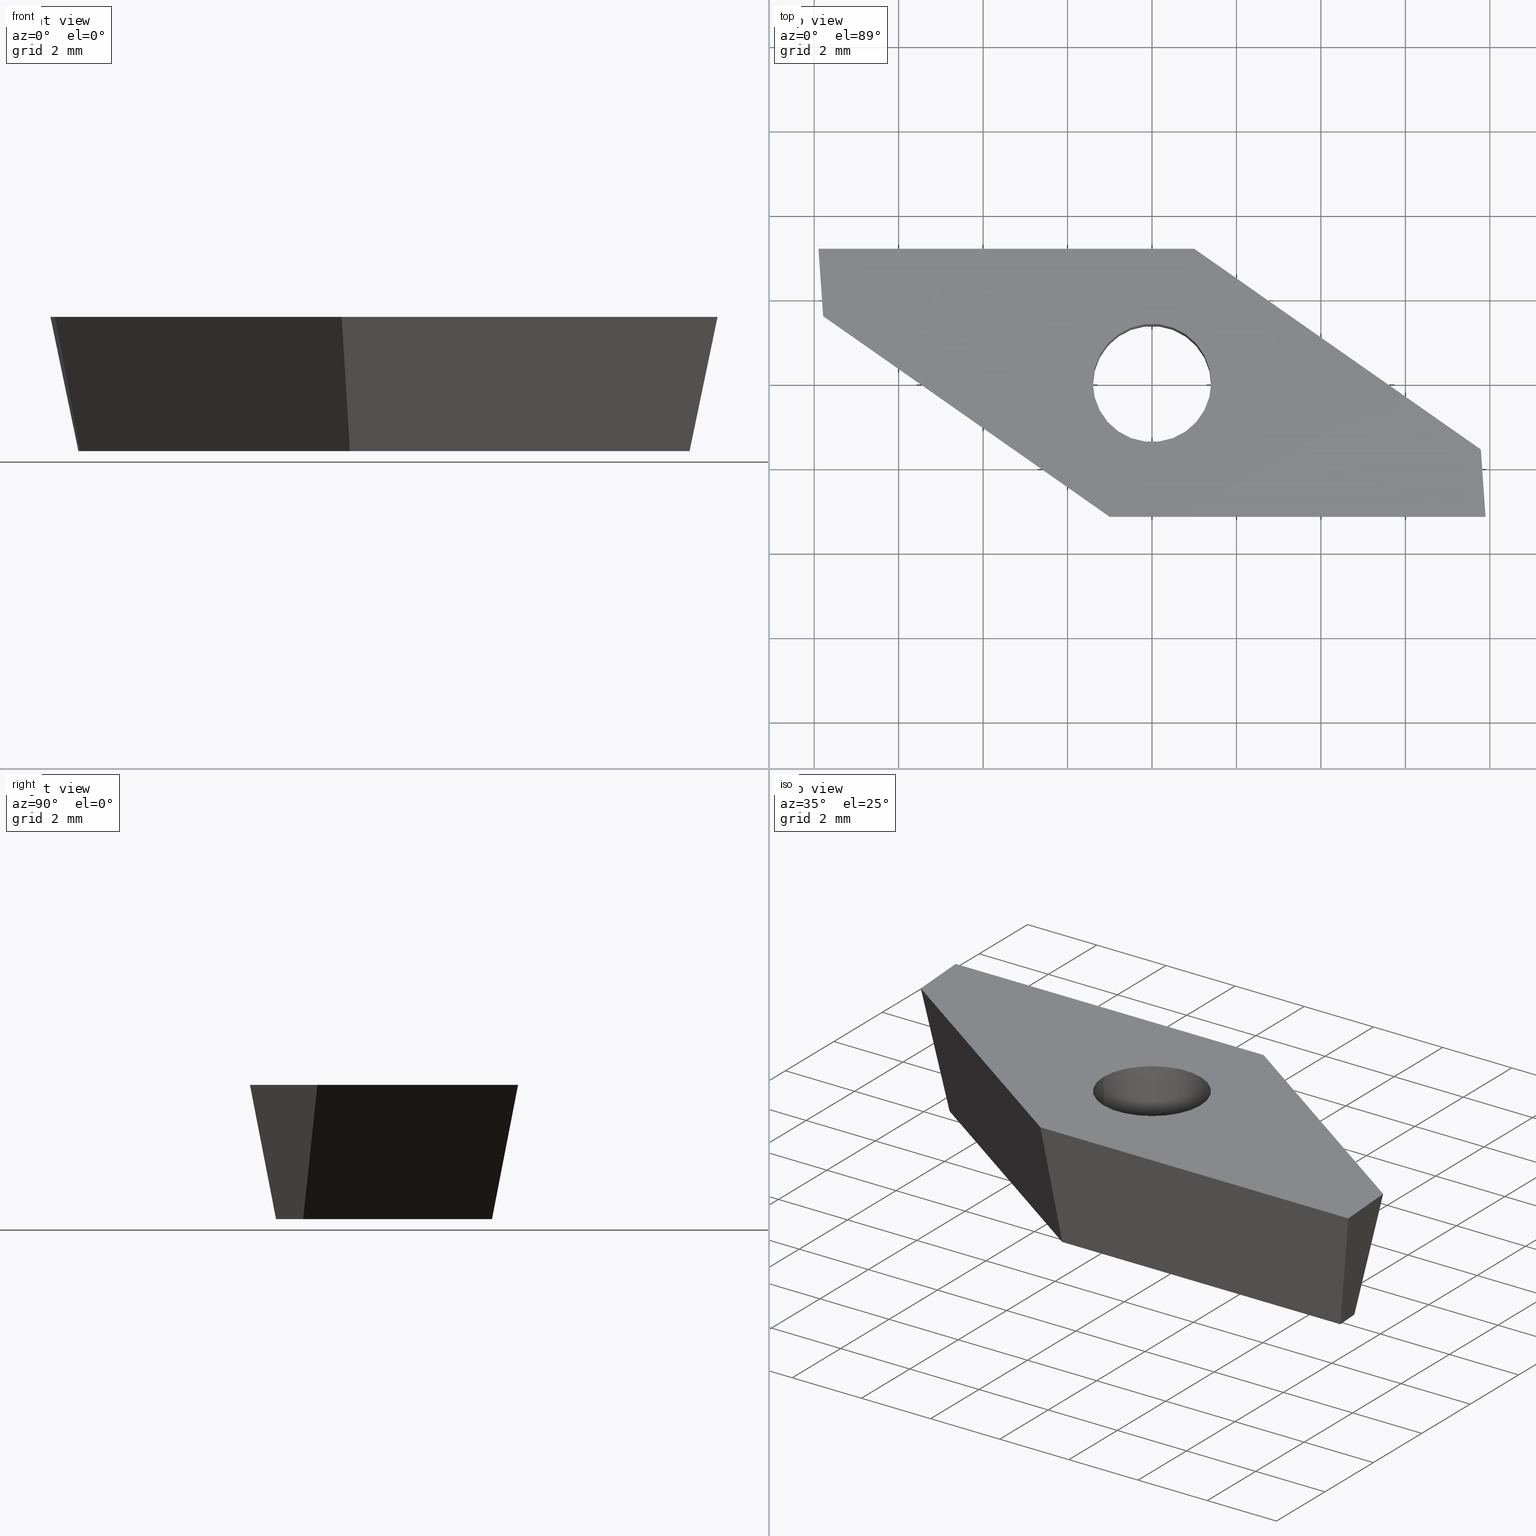
[diagram: canonical four-view strip — front | top / right | iso, engineering-drawing reading convention]
A machine part, canonical four-view strip (front | top / right | iso — engineering-drawing reading convention). The complete STEP part file that produces these views, byte-faithful:
ISO-10303-21;
HEADER;
FILE_DESCRIPTION (( 'STEP AP214' ),
    '1' );
FILE_NAME ('VP.. 1003ZZ .L.step',
    '2017-03-30T12:57:37',
    ( '' ),
    ( '' ),
    'SwSTEP 2.0',
    'SolidWorks 2016',
    '' );
FILE_SCHEMA (( 'AUTOMOTIVE_DESIGN' ));
ENDSEC;

DATA;
#1 = VECTOR ( 'NONE', #332, 1000.000000000000100 ) ;
#2 = DIRECTION ( 'NONE',  ( -1.000000000000000000, -1.581056252441636400E-016, 0.0000000000000000000 ) ) ;
#3 = COLOUR_RGB ( '',0.7960784313725489700, 0.8235294117647058400, 0.9372549019607843100 ) ;
#4 = LINE ( 'NONE', #281, #8 ) ;
#5 = VECTOR ( 'NONE', #337, 1000.000000000000000 ) ;
#6 = DIRECTION ( 'NONE',  ( 0.0000000000000000000, 0.0000000000000000000, -1.000000000000000000 ) ) ;
#7 = LINE ( 'NONE', #81, #5 ) ;
#8 = VECTOR ( 'NONE', #266, 1000.000000000000000 ) ;
#9 = DIRECTION ( 'NONE',  ( 0.0000000000000000000, 0.0000000000000000000, -1.000000000000000000 ) ) ;
#10 = AXIS2_PLACEMENT_3D ( 'NONE', #244, #178, #173 ) ;
#11 = DIRECTION ( 'NONE',  ( 0.0000000000000000000, 0.0000000000000000000, 1.000000000000000000 ) ) ;
#12 = PRODUCT ( 'VP.. 1003ZZ .L', 'VP.. 1003ZZ .L', '', ( #219 ) ) ;
#13 = CARTESIAN_POINT ( 'NONE',  ( 7.900000000000002100, -3.174999999999999400, 0.0000000000000000000 ) ) ;
#14 = DIRECTION ( 'NONE',  ( -0.06975647374412560800, 0.9975640502598243100, 0.0000000000000000000 ) ) ;
#15 = PRESENTATION_STYLE_ASSIGNMENT (( #176 ) ) ;
#16 = CARTESIAN_POINT ( 'NONE',  ( -1.399999999999999900, -2.213478753418290800E-016, -3.180000000000000200 ) ) ;
#17 = SURFACE_STYLE_FILL_AREA ( #101 ) ;
#18 = CARTESIAN_POINT ( 'NONE',  ( -1.001073654690762100, -3.174999999999999800, 0.0000000000000000000 ) ) ;
#19 = CARTESIAN_POINT ( 'NONE',  ( 7.900000000000002100, -3.174999999999999400, 0.0000000000000000000 ) ) ;
#20 = LINE ( 'NONE', #336, #1 ) ;
#21 = CARTESIAN_POINT ( 'NONE',  ( -1.001073654690762100, -2.556870616942053400, -3.180000000000000200 ) ) ;
#22 = VECTOR ( 'NONE', #346, 1000.000000000000100 ) ;
#23 = DIRECTION ( 'NONE',  ( 0.9792359889651950400, 0.06847485084868755500, -0.1908089953765452800 ) ) ;
#24 = CIRCLE ( 'NONE', #259, 1.399999999999999900 ) ;
#25 = LINE ( 'NONE', #283, #22 ) ;
#26 = CIRCLE ( 'NONE', #263, 1.399999999999999900 ) ;
#27 = EDGE_LOOP ( 'NONE', ( #237, #238, #241, #243, #246, #247 ) ) ;
#28 = VECTOR ( 'NONE', #286, 1000.000000000000000 ) ;
#29 = EDGE_LOOP ( 'NONE', ( #249, #258 ) ) ;
#30 = VECTOR ( 'NONE', #103, 1000.000000000000100 ) ;
#31 = PRODUCT_DEFINITION_FORMATION_WITH_SPECIFIED_SOURCE ( 'ANY', '', #12, .NOT_KNOWN. ) ;
#32 = LINE ( 'NONE', #78, #48 ) ;
#33 = CARTESIAN_POINT ( 'NONE',  ( 7.192231910145610900, -1.914692324122641700, -3.180000000000000200 ) ) ;
#34 = CIRCLE ( 'NONE', #276, 1.399999999999999900 ) ;
#35 = CARTESIAN_POINT ( 'NONE',  ( -1.001073654690761300, -3.174999999999999800, 4.532429341667184100E-017 ) ) ;
#36 = DIRECTION ( 'NONE',  ( -5.954649193080809200E-017, 0.9816271834476639800, -0.1908089953765452800 ) ) ;
#37 = VECTOR ( 'NONE', #79, 1000.000000000000100 ) ;
#38 = PRODUCT_DEFINITION_SHAPE ( 'NONE', 'NONE',  #282 ) ;
#39 = LINE ( 'NONE', #18, #28 ) ;
#40 = EDGE_CURVE ( 'NONE', #296, #204, #149, .T. ) ;
#41 = COLOUR_RGB ( '',0.7960784313725489700, 0.8235294117647058400, 0.9372549019607843100 ) ;
#42 = PRODUCT_RELATED_PRODUCT_CATEGORY ( 'part', '', ( #323 ) ) ;
#43 = LINE ( 'NONE', #129, #30 ) ;
#44 = CARTESIAN_POINT ( 'NONE',  ( -0.0000000000000000000, 0.0000000000000000000, -3.180000000000000200 ) ) ;
#45 = LINE ( 'NONE', #105, #37 ) ;
#46 = SURFACE_SIDE_STYLE ('',( #17 ) ) ;
#47 = VECTOR ( 'NONE', #309, 1000.000000000000000 ) ;
#48 = VECTOR ( 'NONE', #104, 1000.000000000000000 ) ;
#49 = LINE ( 'NONE', #331, #62 ) ;
#50 = SURFACE_STYLE_USAGE ( .BOTH. , #161 ) ;
#51 = DIRECTION ( 'NONE',  ( -1.000000000000000000, -1.581056252441636400E-016, 0.0000000000000000000 ) ) ;
#52 = VECTOR ( 'NONE', #325, 1000.000000000000100 ) ;
#53 = LINE ( 'NONE', #316, #52 ) ;
#54 = AXIS2_PLACEMENT_3D ( 'NONE', #261, #146, #144 ) ;
#55 = LINE ( 'NONE', #87, #47 ) ;
#56 = DIRECTION ( 'NONE',  ( 0.0000000000000000000, 0.0000000000000000000, 1.000000000000000000 ) ) ;
#57 = CARTESIAN_POINT ( 'NONE',  ( 0.0000000000000000000, 0.0000000000000000000, 0.0000000000000000000 ) ) ;
#58 = EDGE_CURVE ( 'NONE', #295, #284, #308, .T. ) ;
#59 = VECTOR ( 'NONE', #278, 1000.000000000000100 ) ;
#60 = CIRCLE ( 'NONE', #216, 1.399999999999999900 ) ;
#61 = DIRECTION ( 'NONE',  ( -3.016797551621942100E-017, 0.1908089953765452800, 0.9816271834476639800 ) ) ;
#62 = VECTOR ( 'NONE', #124, 1000.000000000000200 ) ;
#63 = DIRECTION ( 'NONE',  ( 0.1912579077465619300, 3.023895108716074100E-017, 0.9815398171874677400 ) ) ;
#64 = DIRECTION ( 'NONE',  ( -1.000000000000000000, -6.066100545593014700E-017, 0.0000000000000000000 ) ) ;
#65 = EDGE_CURVE ( 'NONE', #293, #180, #152, .T. ) ;
#66 = FACE_OUTER_BOUND ( 'NONE', #212, .T. ) ;
#67 = CYLINDRICAL_SURFACE ( 'NONE', #357, 1.399999999999999900 ) ;
#68 = DIRECTION ( 'NONE',  ( -0.0000000000000000000, -0.0000000000000000000, -1.000000000000000000 ) ) ;
#69 = FACE_OUTER_BOUND ( 'NONE', #291, .T. ) ;
#70 = ORIENTED_EDGE ( 'NONE', *, *, #317, .T. ) ;
#71 = CARTESIAN_POINT ( 'NONE',  ( -7.192231910145610000, 1.914692324122639500, -3.180000000000000200 ) ) ;
#72 = EDGE_CURVE ( 'NONE', #284, #250, #142, .T. ) ;
#73 = ORIENTED_EDGE ( 'NONE', *, *, #72, .F. ) ;
#74 = ORIENTED_EDGE ( 'NONE', *, *, #338, .T. ) ;
#75 = ORIENTED_EDGE ( 'NONE', *, *, #285, .F. ) ;
#76 = VERTEX_POINT ( 'NONE', #33 ) ;
#77 = CARTESIAN_POINT ( 'NONE',  ( -1.399999999999999900, -2.213478753418290800E-016, -3.180000000000000200 ) ) ;
#78 = CARTESIAN_POINT ( 'NONE',  ( 1.001073654690764100, 3.174999999999999800, 0.0000000000000000000 ) ) ;
#79 = DIRECTION ( 'NONE',  ( -0.2004640746510998100, 0.1869357738407769200, 0.9617011860410842300 ) ) ;
#80 = PLANE ( 'NONE',  #314 ) ;
#81 = CARTESIAN_POINT ( 'NONE',  ( -7.433744630409206500, 2.083801351424740200, -3.180000000000000200 ) ) ;
#82 = PRODUCT_DEFINITION_CONTEXT ( 'detailed design', #208, 'design' ) ;
#83 = UNCERTAINTY_MEASURE_WITH_UNIT (LENGTH_MEASURE( 1.000000000000000100E-005 ), #158, 'distance_accuracy_value', 'NONE');
#84 = EDGE_CURVE ( 'NONE', #225, #260, #131, .T. ) ;
#85 =( GEOMETRIC_REPRESENTATION_CONTEXT ( 3 ) GLOBAL_UNCERTAINTY_ASSIGNED_CONTEXT ( ( #114 ) ) GLOBAL_UNIT_ASSIGNED_CONTEXT ( ( #256, #254, #252 ) ) REPRESENTATION_CONTEXT ( 'NONE', 'WORKASPACE' ) );
#86 = CARTESIAN_POINT ( 'NONE',  ( 1.001073654690764100, 2.556870616942053400, -3.180000000000000200 ) ) ;
#87 = CARTESIAN_POINT ( 'NONE',  ( 1.399999999999999900, 4.989732346119967600E-017, -3.180000000000000200 ) ) ;
#88 = PLANE ( 'NONE',  #303 ) ;
#89 = FILL_AREA_STYLE_COLOUR ( '', #41 ) ;
#90 = FACE_OUTER_BOUND ( 'NONE', #307, .T. ) ;
#91 = CYLINDRICAL_SURFACE ( 'NONE', #347, 1.399999999999999900 ) ;
#92 = CARTESIAN_POINT ( 'NONE',  ( 0.0000000000000000000, 0.0000000000000000000, -3.180000000000000200 ) ) ;
#93 = FACE_OUTER_BOUND ( 'NONE', #318, .T. ) ;
#94 = CARTESIAN_POINT ( 'NONE',  ( 7.788289079147451900, -1.577459403657730300, 0.0000000000000000000 ) ) ;
#95 = PLANE ( 'NONE',  #320 ) ;
#96 = LINE ( 'NONE', #110, #59 ) ;
#97 = MECHANICAL_DESIGN_GEOMETRIC_PRESENTATION_REPRESENTATION (  '', ( #183 ), #344 ) ;
#98 = FACE_OUTER_BOUND ( 'NONE', #294, .T. ) ;
#99 = FACE_OUTER_BOUND ( 'NONE', #322, .T. ) ;
#100 = DIRECTION ( 'NONE',  ( 0.1912579077465619300, 3.023895108716074100E-017, -0.9815398171874677400 ) ) ;
#101 = FILL_AREA_STYLE ('',( #89 ) ) ;
#102 = DIRECTION ( 'NONE',  ( -1.000000000000000000, -1.581056252441636400E-016, 0.0000000000000000000 ) ) ;
#103 = DIRECTION ( 'NONE',  ( 0.2004640746510999200, -0.1869357738407769200, 0.9617011860410842300 ) ) ;
#104 = DIRECTION ( 'NONE',  ( 1.000000000000000000, 6.066100545593014700E-017, -0.0000000000000000000 ) ) ;
#105 = CARTESIAN_POINT ( 'NONE',  ( -7.900000000000000400, 3.174999999999999400, 0.0000000000000000000 ) ) ;
#106 = PRODUCT_DEFINITION_SHAPE ( 'NONE', 'NONE',  #353 ) ;
#107 = DIRECTION ( 'NONE',  ( -0.5630382217072208400, -0.8041019140508024500, -0.1908089953765452500 ) ) ;
#108 = CARTESIAN_POINT ( 'NONE',  ( -0.8061782088420796900, -2.556870616942053400, -3.180000000000000200 ) ) ;
#109 = EDGE_CURVE ( 'NONE', #255, #315, #138, .T. ) ;
#110 = CARTESIAN_POINT ( 'NONE',  ( 7.283376349052112200, -3.218118526079754000, -3.180000000000000200 ) ) ;
#111 = CARTESIAN_POINT ( 'NONE',  ( 0.8061782088420823600, 2.556870616942053400, -3.180000000000000200 ) ) ;
#112 = FACE_OUTER_BOUND ( 'NONE', #324, .T. ) ;
#113 = CARTESIAN_POINT ( 'NONE',  ( 0.0000000000000000000, 0.0000000000000000000, 0.0000000000000000000 ) ) ;
#114 = UNCERTAINTY_MEASURE_WITH_UNIT (LENGTH_MEASURE( 1.000000000000000100E-005 ), #256, 'distance_accuracy_value', 'NONE');
#115 = DIRECTION ( 'NONE',  ( 0.0000000000000000000, 0.0000000000000000000, 1.000000000000000000 ) ) ;
#116 = FACE_BOUND ( 'NONE', #311, .T. ) ;
#117 = FACE_OUTER_BOUND ( 'NONE', #27, .T. ) ;
#118 = FACE_BOUND ( 'NONE', #29, .T. ) ;
#119 = VECTOR ( 'NONE', #196, 1000.000000000000200 ) ;
#120 = DIRECTION ( 'NONE',  ( -0.0000000000000000000, -0.0000000000000000000, -1.000000000000000000 ) ) ;
#121 = FACE_OUTER_BOUND ( 'NONE', #235, .T. ) ;
#122 = EDGE_CURVE ( 'NONE', #299, #225, #128, .T. ) ;
#123 = CARTESIAN_POINT ( 'NONE',  ( -7.788289079147451100, 1.577459403657728100, 0.0000000000000000000 ) ) ;
#124 = DIRECTION ( 'NONE',  ( -0.8191520442889952400, 0.5735764363510411600, 0.0000000000000000000 ) ) ;
#125 = PRESENTATION_LAYER_ASSIGNMENT (  '', '', ( #183 ) ) ;
#126 = VECTOR ( 'NONE', #139, 1000.000000000000000 ) ;
#127 = LINE ( 'NONE', #134, #119 ) ;
#128 = LINE ( 'NONE', #163, #126 ) ;
#129 = CARTESIAN_POINT ( 'NONE',  ( 7.900000000000002100, -3.174999999999999400, 0.0000000000000000000 ) ) ;
#130 = VECTOR ( 'NONE', #14, 999.9999999999998900 ) ;
#131 = LINE ( 'NONE', #348, #130 ) ;
#132 = PLANE ( 'NONE',  #245 ) ;
#133 = VECTOR ( 'NONE', #356, 1000.000000000000000 ) ;
#134 = CARTESIAN_POINT ( 'NONE',  ( 7.788289079147451900, -1.577459403657730300, 0.0000000000000000000 ) ) ;
#135 = VECTOR ( 'NONE', #257, 1000.000000000000100 ) ;
#136 = FACE_OUTER_BOUND ( 'NONE', #228, .T. ) ;
#137 = VECTOR ( 'NONE', #242, 1000.000000000000000 ) ;
#138 = LINE ( 'NONE', #86, #133 ) ;
#139 = DIRECTION ( 'NONE',  ( -0.1832382521941806300, -0.1036712150141736200, 0.9775868360970839700 ) ) ;
#140 = EDGE_CURVE ( 'NONE', #290, #293, #127, .T. ) ;
#141 = VECTOR ( 'NONE', #64, 1000.000000000000000 ) ;
#142 = LINE ( 'NONE', #35, #135 ) ;
#143 = APPLICATION_PROTOCOL_DEFINITION ( 'draft international standard', 'automotive_design', 1998, #217 ) ;
#144 = DIRECTION ( 'NONE',  ( 1.000000000000000000, 0.0000000000000000000, 0.0000000000000000000 ) ) ;
#145 = VECTOR ( 'NONE', #56, 1000.000000000000000 ) ;
#146 = DIRECTION ( 'NONE',  ( 0.0000000000000000000, 0.0000000000000000000, 1.000000000000000000 ) ) ;
#147 =( GEOMETRIC_REPRESENTATION_CONTEXT ( 3 ) GLOBAL_UNCERTAINTY_ASSIGNED_CONTEXT ( ( #83 ) ) GLOBAL_UNIT_ASSIGNED_CONTEXT ( ( #158, #157, #151 ) ) REPRESENTATION_CONTEXT ( 'NONE', 'WORKASPACE' ) );
#148 = CARTESIAN_POINT ( 'NONE',  ( 1.399999999999999900, 4.989732346119967600E-017, 0.0000000000000000000 ) ) ;
#149 = LINE ( 'NONE', #16, #145 ) ;
#150 = CARTESIAN_POINT ( 'NONE',  ( -1.001073654690762100, -3.174999999999999800, 0.0000000000000000000 ) ) ;
#151 =( NAMED_UNIT ( * ) SI_UNIT ( $, .STERADIAN. ) SOLID_ANGLE_UNIT ( ) );
#152 = LINE ( 'NONE', #13, #137 ) ;
#153 = CARTESIAN_POINT ( 'NONE',  ( 1.399999999999999900, 4.989732346119967600E-017, -3.180000000000000200 ) ) ;
#154 = CARTESIAN_POINT ( 'NONE',  ( 1.001073654690764100, 3.174999999999999800, 0.0000000000000000000 ) ) ;
#155 = PLANE ( 'NONE',  #185 ) ;
#156 = ORIENTED_EDGE ( 'NONE', *, *, #285, .T. ) ;
#157 =( NAMED_UNIT ( * ) PLANE_ANGLE_UNIT ( ) SI_UNIT ( $, .RADIAN. ) );
#158 =( LENGTH_UNIT ( ) NAMED_UNIT ( * ) SI_UNIT ( .MILLI., .METRE. ) );
#159 = ADVANCED_FACE ( 'NONE', ( #121 ), #155, .T. ) ;
#160 = ADVANCED_FACE ( 'NONE', ( #118, #112 ), #80, .F. ) ;
#161 = SURFACE_SIDE_STYLE ('',( #335 ) ) ;
#162 = ORIENTED_EDGE ( 'NONE', *, *, #327, .T. ) ;
#163 = CARTESIAN_POINT ( 'NONE',  ( -7.788289079147451100, 1.577459403657728100, 3.148184459698170000E-018 ) ) ;
#164 = ADVANCED_FACE ( 'NONE', ( #116, #117 ), #88, .T. ) ;
#165 = ORIENTED_EDGE ( 'NONE', *, *, #304, .F. ) ;
#166 = ADVANCED_FACE ( 'NONE', ( #99 ), #91, .F. ) ;
#167 = ADVANCED_FACE ( 'NONE', ( #98 ), #95, .T. ) ;
#168 = FILL_AREA_STYLE ('',( #223 ) ) ;
#169 = ORIENTED_EDGE ( 'NONE', *, *, #40, .F. ) ;
#170 = ORIENTED_EDGE ( 'NONE', *, *, #65, .T. ) ;
#171 = APPLICATION_CONTEXT ( 'automotive_design' ) ;
#172 = ORIENTED_EDGE ( 'NONE', *, *, #321, .F. ) ;
#173 = DIRECTION ( 'NONE',  ( 1.000000000000000000, 0.0000000000000000000, 0.0000000000000000000 ) ) ;
#174 = ADVANCED_FACE ( 'NONE', ( #90 ), #67, .F. ) ;
#175 = ADVANCED_FACE ( 'NONE', ( #93 ), #273, .T. ) ;
#176 = SURFACE_STYLE_USAGE ( .BOTH. , #46 ) ;
#177 = ADVANCED_FACE ( 'NONE', ( #136 ), #189, .T. ) ;
#178 = DIRECTION ( 'NONE',  ( 0.0000000000000000000, 0.0000000000000000000, 1.000000000000000000 ) ) ;
#179 = ADVANCED_FACE ( 'NONE', ( #66 ), #132, .T. ) ;
#180 = VERTEX_POINT ( 'NONE', #330 ) ;
#181 = EDGE_CURVE ( 'NONE', #76, #295, #96, .T. ) ;
#182 = ORIENTED_EDGE ( 'NONE', *, *, #181, .F. ) ;
#183 = STYLED_ITEM ( 'NONE', ( #15 ), #342 ) ;
#184 = ADVANCED_FACE ( 'NONE', ( #69 ), #287, .T. ) ;
#185 = AXIS2_PLACEMENT_3D ( 'NONE', #19, #23, #63 ) ;
#186 = CARTESIAN_POINT ( 'NONE',  ( 7.237137390861799500, -2.556870616942053000, -3.180000000000000200 ) ) ;
#187 = ORIENTED_EDGE ( 'NONE', *, *, #334, .T. ) ;
#188 = ORIENTED_EDGE ( 'NONE', *, *, #140, .T. ) ;
#189 = PLANE ( 'NONE',  #339 ) ;
#190 = ORIENTED_EDGE ( 'NONE', *, *, #334, .F. ) ;
#191 = ORIENTED_EDGE ( 'NONE', *, *, #351, .F. ) ;
#192 = APPLICATION_PROTOCOL_DEFINITION ( 'draft international standard', 'automotive_design', 1998, #200 ) ;
#193 = ORIENTED_EDGE ( 'NONE', *, *, #203, .T. ) ;
#194 = DIRECTION ( 'NONE',  ( -0.8191520442889952400, 0.5735764363510411600, 0.0000000000000000000 ) ) ;
#195 = SHAPE_DEFINITION_REPRESENTATION ( #38, #326 ) ;
#196 = DIRECTION ( 'NONE',  ( 0.8191520442889951300, -0.5735764363510413900, -0.0000000000000000000 ) ) ;
#197 = EDGE_CURVE ( 'NONE', #289, #204, #60, .T. ) ;
#198 = ORIENTED_EDGE ( 'NONE', *, *, #312, .T. ) ;
#199 = PRODUCT_RELATED_PRODUCT_CATEGORY ( 'part', '', ( #12 ) ) ;
#200 = APPLICATION_CONTEXT ( 'automotive_design' ) ;
#201 = APPLICATION_PROTOCOL_DEFINITION ( 'draft international standard', 'automotive_design', 1998, #208 ) ;
#202 = PRODUCT_DEFINITION_CONTEXT ( 'detailed design', #217, 'design' ) ;
#203 = EDGE_CURVE ( 'NONE', #315, #290, #53, .T. ) ;
#204 = VERTEX_POINT ( 'NONE', #274 ) ;
#205 = DIRECTION ( 'NONE',  ( -0.9792359889651950400, -0.06847485084868693000, -0.1908089953765452800 ) ) ;
#206 = ORIENTED_EDGE ( 'NONE', *, *, #203, .F. ) ;
#207 = ORIENTED_EDGE ( 'NONE', *, *, #109, .F. ) ;
#208 = APPLICATION_CONTEXT ( 'automotive_design' ) ;
#209 = ORIENTED_EDGE ( 'NONE', *, *, #305, .T. ) ;
#210 = ORIENTED_EDGE ( 'NONE', *, *, #84, .T. ) ;
#211 = STYLED_ITEM ( 'NONE', ( #275 ), #326 ) ;
#212 = EDGE_LOOP ( 'NONE', ( #198, #206, #207, #209 ) ) ;
#213 = PRODUCT_CONTEXT ( 'NONE', #200, 'mechanical' ) ;
#214 = ORIENTED_EDGE ( 'NONE', *, *, #305, .F. ) ;
#215 = ORIENTED_EDGE ( 'NONE', *, *, #350, .F. ) ;
#216 = AXIS2_PLACEMENT_3D ( 'NONE', #232, #251, #341 ) ;
#217 = APPLICATION_CONTEXT ( 'automotive_design' ) ;
#218 = ORIENTED_EDGE ( 'NONE', *, *, #122, .T. ) ;
#219 = PRODUCT_CONTEXT ( 'NONE', #171, 'mechanical' ) ;
#220 = APPLICATION_PROTOCOL_DEFINITION ( 'draft international standard', 'automotive_design', 1998, #171 ) ;
#221 = ORIENTED_EDGE ( 'NONE', *, *, #288, .T. ) ;
#222 = ORIENTED_EDGE ( 'NONE', *, *, #122, .F. ) ;
#223 = FILL_AREA_STYLE_COLOUR ( '', #3 ) ;
#224 = ORIENTED_EDGE ( 'NONE', *, *, #345, .F. ) ;
#225 = VERTEX_POINT ( 'NONE', #302 ) ;
#226 = ORIENTED_EDGE ( 'NONE', *, *, #72, .T. ) ;
#227 = CARTESIAN_POINT ( 'NONE',  ( -7.900000000000000400, 3.174999999999999400, 0.0000000000000000000 ) ) ;
#228 = EDGE_LOOP ( 'NONE', ( #188, #190, #191, #193 ) ) ;
#229 = CARTESIAN_POINT ( 'NONE',  ( -0.0000000000000000000, 0.0000000000000000000, -3.180000000000000200 ) ) ;
#230 = ORIENTED_EDGE ( 'NONE', *, *, #58, .F. ) ;
#231 = ORIENTED_EDGE ( 'NONE', *, *, #321, .T. ) ;
#232 = CARTESIAN_POINT ( 'NONE',  ( 0.0000000000000000000, 0.0000000000000000000, 0.0000000000000000000 ) ) ;
#233 = ORIENTED_EDGE ( 'NONE', *, *, #327, .F. ) ;
#234 = DIRECTION ( 'NONE',  ( -1.000000000000000000, -1.581056252441636400E-016, 0.0000000000000000000 ) ) ;
#235 = EDGE_LOOP ( 'NONE', ( #170, #172, #182, #187 ) ) ;
#236 = ORIENTED_EDGE ( 'NONE', *, *, #338, .F. ) ;
#237 = ORIENTED_EDGE ( 'NONE', *, *, #181, .T. ) ;
#238 = ORIENTED_EDGE ( 'NONE', *, *, #58, .T. ) ;
#239 = PRESENTATION_LAYER_ASSIGNMENT (  '', '', ( #211 ) ) ;
#240 = DIRECTION ( 'NONE',  ( 1.000000000000000000, 1.581056252441636400E-016, 0.0000000000000000000 ) ) ;
#241 = ORIENTED_EDGE ( 'NONE', *, *, #345, .T. ) ;
#242 = DIRECTION ( 'NONE',  ( 0.06975647374412621800, -0.9975640502598242000, -0.0000000000000000000 ) ) ;
#243 = ORIENTED_EDGE ( 'NONE', *, *, #350, .T. ) ;
#244 = CARTESIAN_POINT ( 'NONE',  ( 0.0000000000000000000, 0.0000000000000000000, 0.0000000000000000000 ) ) ;
#245 = AXIS2_PLACEMENT_3D ( 'NONE', #270, #36, #61 ) ;
#246 = ORIENTED_EDGE ( 'NONE', *, *, #109, .T. ) ;
#247 = ORIENTED_EDGE ( 'NONE', *, *, #351, .T. ) ;
#248 = MECHANICAL_DESIGN_GEOMETRIC_PRESENTATION_REPRESENTATION (  '', ( #211 ), #147 ) ;
#249 = ORIENTED_EDGE ( 'NONE', *, *, #304, .T. ) ;
#250 = VERTEX_POINT ( 'NONE', #150 ) ;
#251 = DIRECTION ( 'NONE',  ( -0.0000000000000000000, -0.0000000000000000000, -1.000000000000000000 ) ) ;
#252 =( NAMED_UNIT ( * ) SI_UNIT ( $, .STERADIAN. ) SOLID_ANGLE_UNIT ( ) );
#253 = AXIS2_PLACEMENT_3D ( 'NONE', #277, #313, #268 ) ;
#254 =( NAMED_UNIT ( * ) PLANE_ANGLE_UNIT ( ) SI_UNIT ( $, .RADIAN. ) );
#255 = VERTEX_POINT ( 'NONE', #329 ) ;
#256 =( LENGTH_UNIT ( ) NAMED_UNIT ( * ) SI_UNIT ( .MILLI., .METRE. ) );
#257 = DIRECTION ( 'NONE',  ( -0.06005326349153966600, -0.1904646183547176200, 0.9798555172570124800 ) ) ;
#258 = ORIENTED_EDGE ( 'NONE', *, *, #197, .T. ) ;
#259 = AXIS2_PLACEMENT_3D ( 'NONE', #44, #68, #51 ) ;
#260 = VERTEX_POINT ( 'NONE', #319 ) ;
#261 = CARTESIAN_POINT ( 'NONE',  ( 0.0000000000000000000, 0.0000000000000000000, 0.0000000000000000000 ) ) ;
#262 = UNCERTAINTY_MEASURE_WITH_UNIT (LENGTH_MEASURE( 1.000000000000000100E-005 ), #355, 'distance_accuracy_value', 'NONE');
#263 = AXIS2_PLACEMENT_3D ( 'NONE', #292, #298, #301 ) ;
#264 = ORIENTED_EDGE ( 'NONE', *, *, #65, .F. ) ;
#265 = ORIENTED_EDGE ( 'NONE', *, *, #140, .F. ) ;
#266 = DIRECTION ( 'NONE',  ( 0.8191520442889951300, -0.5735764363510413900, 0.0000000000000000000 ) ) ;
#267 = ORIENTED_EDGE ( 'NONE', *, *, #312, .F. ) ;
#268 = DIRECTION ( 'NONE',  ( -3.016797551621942100E-017, 0.1908089953765452800, -0.9816271834476639800 ) ) ;
#269 = ORIENTED_EDGE ( 'NONE', *, *, #84, .F. ) ;
#270 = CARTESIAN_POINT ( 'NONE',  ( 1.001073654690764100, 3.174999999999999800, 0.0000000000000000000 ) ) ;
#271 = ORIENTED_EDGE ( 'NONE', *, *, #288, .F. ) ;
#272 = ORIENTED_EDGE ( 'NONE', *, *, #317, .F. ) ;
#273 = PLANE ( 'NONE',  #354 ) ;
#274 = CARTESIAN_POINT ( 'NONE',  ( -1.399999999999999900, -2.213478753418290800E-016, 0.0000000000000000000 ) ) ;
#275 = PRESENTATION_STYLE_ASSIGNMENT (( #50 ) ) ;
#276 = AXIS2_PLACEMENT_3D ( 'NONE', #113, #120, #102 ) ;
#277 = CARTESIAN_POINT ( 'NONE',  ( -1.001073654690762100, -3.174999999999999800, 0.0000000000000000000 ) ) ;
#278 = DIRECTION ( 'NONE',  ( 0.06975647374412621800, -0.9975640502598242000, 0.0000000000000000000 ) ) ;
#279 = ORIENTED_EDGE ( 'NONE', *, *, #40, .T. ) ;
#280 = ORIENTED_EDGE ( 'NONE', *, *, #197, .F. ) ;
#281 = CARTESIAN_POINT ( 'NONE',  ( 7.433744630409207400, -2.083801351424742400, -3.180000000000000200 ) ) ;
#282 = PRODUCT_DEFINITION ( 'UNKNOWN', '', #31, #202 ) ;
#283 = CARTESIAN_POINT ( 'NONE',  ( 7.788289079147451900, -1.577459403657730300, 0.0000000000000000000 ) ) ;
#284 = VERTEX_POINT ( 'NONE', #108 ) ;
#285 = EDGE_CURVE ( 'NONE', #297, #289, #55, .T. ) ;
#286 = DIRECTION ( 'NONE',  ( -1.000000000000000000, -6.066100545593014700E-017, 0.0000000000000000000 ) ) ;
#287 = PLANE ( 'NONE',  #253 ) ;
#288 = EDGE_CURVE ( 'NONE', #250, #225, #49, .T. ) ;
#289 = VERTEX_POINT ( 'NONE', #148 ) ;
#290 = VERTEX_POINT ( 'NONE', #154 ) ;
#291 = EDGE_LOOP ( 'NONE', ( #70, #73, #230, #231 ) ) ;
#292 = CARTESIAN_POINT ( 'NONE',  ( -0.0000000000000000000, 0.0000000000000000000, -3.180000000000000200 ) ) ;
#293 = VERTEX_POINT ( 'NONE', #328 ) ;
#294 = EDGE_LOOP ( 'NONE', ( #210, #214, #215, #218 ) ) ;
#295 = VERTEX_POINT ( 'NONE', #186 ) ;
#296 = VERTEX_POINT ( 'NONE', #77 ) ;
#297 = VERTEX_POINT ( 'NONE', #153 ) ;
#298 = DIRECTION ( 'NONE',  ( -0.0000000000000000000, -0.0000000000000000000, -1.000000000000000000 ) ) ;
#299 = VERTEX_POINT ( 'NONE', #71 ) ;
#300 = CARTESIAN_POINT ( 'NONE',  ( -0.0000000000000000000, 0.0000000000000000000, -3.180000000000000200 ) ) ;
#301 = DIRECTION ( 'NONE',  ( -1.000000000000000000, -1.581056252441636400E-016, 0.0000000000000000000 ) ) ;
#302 = CARTESIAN_POINT ( 'NONE',  ( -7.788289079147451100, 1.577459403657728100, 0.0000000000000000000 ) ) ;
#303 = AXIS2_PLACEMENT_3D ( 'NONE', #92, #6, #240 ) ;
#304 = EDGE_CURVE ( 'NONE', #204, #289, #34, .T. ) ;
#305 = EDGE_CURVE ( 'NONE', #255, #260, #45, .T. ) ;
#306 = CLOSED_SHELL ( 'NONE', ( #166, #159, #177, #179, #167, #175, #184, #164, #160, #174 ) ) ;
#307 = EDGE_LOOP ( 'NONE', ( #75, #74, #279, #280 ) ) ;
#308 = LINE ( 'NONE', #21, #141 ) ;
#309 = DIRECTION ( 'NONE',  ( 0.0000000000000000000, 0.0000000000000000000, 1.000000000000000000 ) ) ;
#310 = DIRECTION ( 'NONE',  ( 1.000000000000000000, 1.581056252441636400E-016, 0.0000000000000000000 ) ) ;
#311 = EDGE_LOOP ( 'NONE', ( #233, #236 ) ) ;
#312 = EDGE_CURVE ( 'NONE', #260, #290, #32, .T. ) ;
#313 = DIRECTION ( 'NONE',  ( 5.954649193080809200E-017, -0.9816271834476639800, -0.1908089953765452800 ) ) ;
#314 = AXIS2_PLACEMENT_3D ( 'NONE', #57, #9, #310 ) ;
#315 = VERTEX_POINT ( 'NONE', #111 ) ;
#316 = CARTESIAN_POINT ( 'NONE',  ( 1.001073654690764100, 3.174999999999999800, 0.0000000000000000000 ) ) ;
#317 = EDGE_CURVE ( 'NONE', #180, #250, #39, .T. ) ;
#318 = EDGE_LOOP ( 'NONE', ( #221, #222, #224, #226 ) ) ;
#319 = CARTESIAN_POINT ( 'NONE',  ( -7.900000000000000400, 3.174999999999999400, 0.0000000000000000000 ) ) ;
#320 = AXIS2_PLACEMENT_3D ( 'NONE', #227, #205, #100 ) ;
#321 = EDGE_CURVE ( 'NONE', #295, #180, #43, .T. ) ;
#322 = EDGE_LOOP ( 'NONE', ( #162, #156, #165, #169 ) ) ;
#323 = PRODUCT ( 'VP.. 1003ZZ .L', 'VP.. 1003ZZ .L', '', ( #213 ) ) ;
#324 = EDGE_LOOP ( 'NONE', ( #264, #265, #267, #269, #271, #272 ) ) ;
#325 = DIRECTION ( 'NONE',  ( 0.06005326349153968000, 0.1904646183547176200, 0.9798555172570124800 ) ) ;
#326 = ADVANCED_BREP_SHAPE_REPRESENTATION ( 'VP.. 1003ZZ .L', ( #342, #54 ), #85 ) ;
#327 = EDGE_CURVE ( 'NONE', #296, #297, #26, .T. ) ;
#328 = CARTESIAN_POINT ( 'NONE',  ( 7.788289079147451900, -1.577459403657730300, 0.0000000000000000000 ) ) ;
#329 = CARTESIAN_POINT ( 'NONE',  ( -7.237137390861797700, 2.556870616942053000, -3.180000000000000200 ) ) ;
#330 = CARTESIAN_POINT ( 'NONE',  ( 7.900000000000002100, -3.174999999999999400, 0.0000000000000000000 ) ) ;
#331 = CARTESIAN_POINT ( 'NONE',  ( -7.788289079147451100, 1.577459403657728100, 0.0000000000000000000 ) ) ;
#332 = DIRECTION ( 'NONE',  ( -0.06975647374412560800, 0.9975640502598242000, 0.0000000000000000000 ) ) ;
#333 = PRODUCT_DEFINITION_FORMATION_WITH_SPECIFIED_SOURCE ( 'ANY', '', #323, .NOT_KNOWN. ) ;
#334 = EDGE_CURVE ( 'NONE', #76, #293, #25, .T. ) ;
#335 = SURFACE_STYLE_FILL_AREA ( #168 ) ;
#336 = CARTESIAN_POINT ( 'NONE',  ( -7.283376349052110400, 3.218118526079753600, -3.180000000000000200 ) ) ;
#337 = DIRECTION ( 'NONE',  ( -0.8191520442889952400, 0.5735764363510411600, 0.0000000000000000000 ) ) ;
#338 = EDGE_CURVE ( 'NONE', #297, #296, #24, .T. ) ;
#339 = AXIS2_PLACEMENT_3D ( 'NONE', #94, #343, #340 ) ;
#340 = DIRECTION ( 'NONE',  ( 0.8191520442889951300, -0.5735764363510413900, 0.0000000000000000000 ) ) ;
#341 = DIRECTION ( 'NONE',  ( -1.000000000000000000, -1.581056252441636400E-016, 0.0000000000000000000 ) ) ;
#342 = MANIFOLD_SOLID_BREP ( 'Spiegeln1', #306 ) ;
#343 = DIRECTION ( 'NONE',  ( 0.5630382217072210600, 0.8041019140508023400, -0.1908089953765452800 ) ) ;
#344 =( GEOMETRIC_REPRESENTATION_CONTEXT ( 3 ) GLOBAL_UNCERTAINTY_ASSIGNED_CONTEXT ( ( #262 ) ) GLOBAL_UNIT_ASSIGNED_CONTEXT ( ( #355, #352, #349 ) ) REPRESENTATION_CONTEXT ( 'NONE', 'WORKASPACE' ) );
#345 = EDGE_CURVE ( 'NONE', #284, #299, #7, .T. ) ;
#346 = DIRECTION ( 'NONE',  ( 0.1832382521941805500, 0.1036712150141736300, 0.9775868360970839700 ) ) ;
#347 = AXIS2_PLACEMENT_3D ( 'NONE', #229, #11, #234 ) ;
#348 = CARTESIAN_POINT ( 'NONE',  ( -7.900000000000000400, 3.174999999999999400, 0.0000000000000000000 ) ) ;
#349 =( NAMED_UNIT ( * ) SI_UNIT ( $, .STERADIAN. ) SOLID_ANGLE_UNIT ( ) );
#350 = EDGE_CURVE ( 'NONE', #299, #255, #20, .T. ) ;
#351 = EDGE_CURVE ( 'NONE', #315, #76, #4, .T. ) ;
#352 =( NAMED_UNIT ( * ) PLANE_ANGLE_UNIT ( ) SI_UNIT ( $, .RADIAN. ) );
#353 = PRODUCT_DEFINITION ( 'UNKNOWN', '', #333, #82 ) ;
#354 = AXIS2_PLACEMENT_3D ( 'NONE', #123, #107, #194 ) ;
#355 =( LENGTH_UNIT ( ) NAMED_UNIT ( * ) SI_UNIT ( .MILLI., .METRE. ) );
#356 = DIRECTION ( 'NONE',  ( 1.000000000000000000, 6.066100545593014700E-017, 0.0000000000000000000 ) ) ;
#357 = AXIS2_PLACEMENT_3D ( 'NONE', #300, #115, #2 ) ;
ENDSEC;
END-ISO-10303-21;
